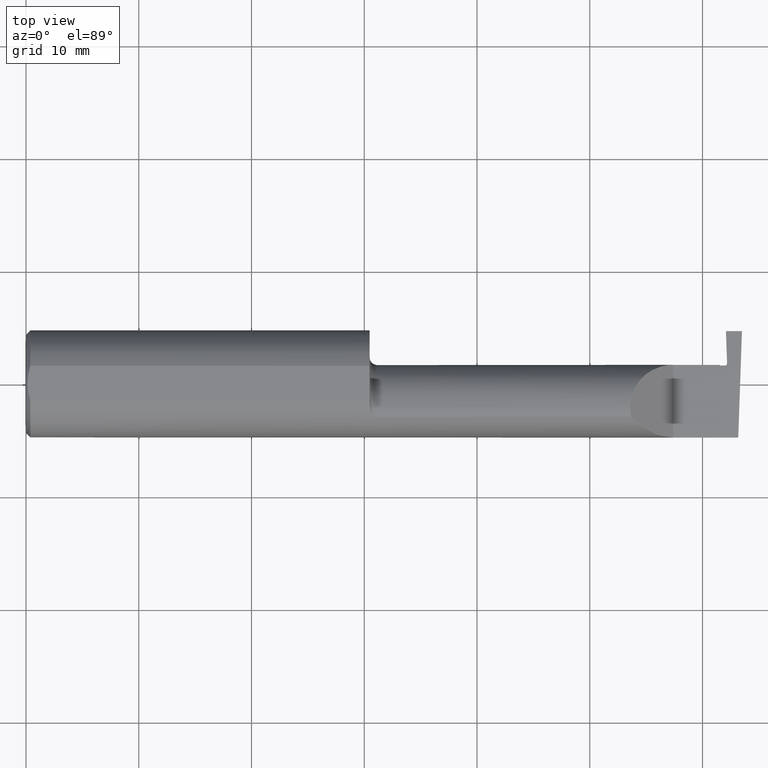
[diagram: clean part render]
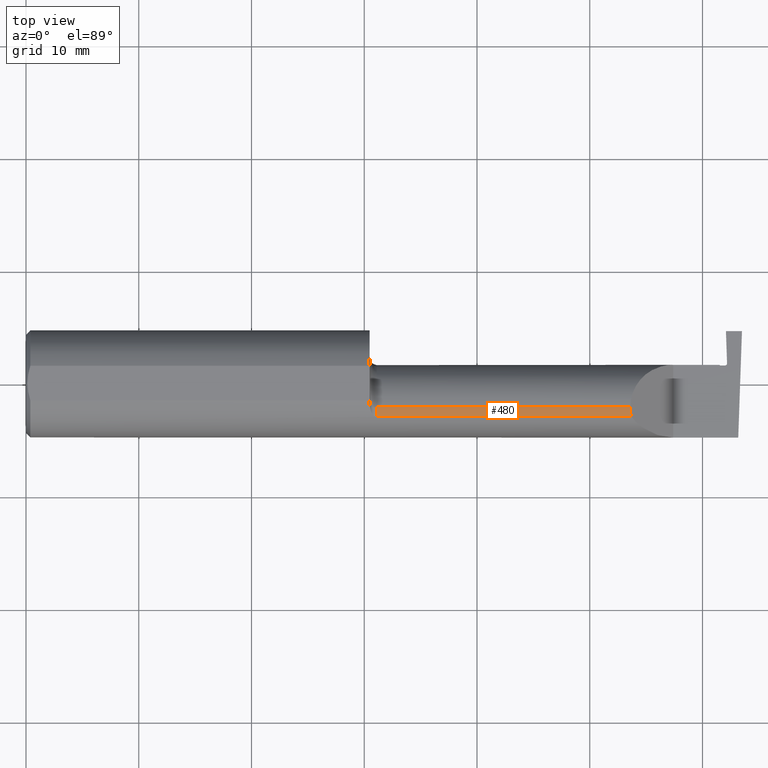
[diagram: same view with one face highlighted and labeled with its STEP entity id]
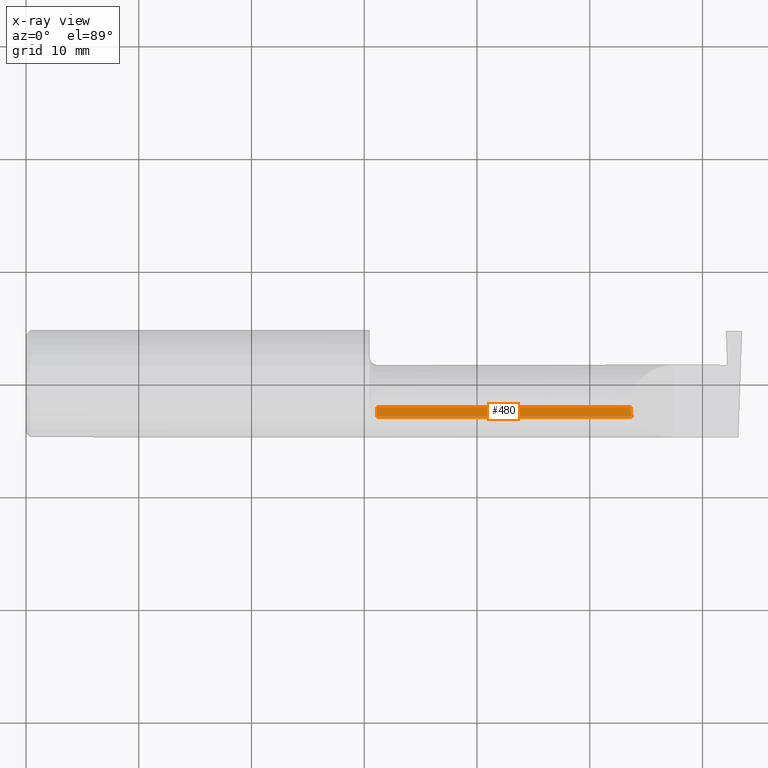
[diagram: x-ray of the same camera — body ghosted, the highlighted face saturated]
A machine part, top view. The second image highlights one B-rep face of the part: STEP entity #480.
The next image is the same camera in x-ray: the body ghosted, the highlighted face saturated — about 0% of this face is hidden behind the body in this view.
In plain terms, the highlighted cylindrical surface (partial cylindrical patch) has radius 3.81 mm, axis along (-1, -0, -0).
Its self-contained STEP definition (entity closure, byte-faithful):
#17 = CARTESIAN_POINT ( 'NONE',  ( 1.225000000000000089, -0.1172600179964007477, 0.1461167706989302817 ) ) ;
#21 = CARTESIAN_POINT ( 'NONE',  ( 1.225000000000000089, -0.08334999999999996578, 0.1499999999999999944 ) ) ;
#26 = ORIENTED_EDGE ( 'NONE', *, *, #105, .T. ) ;
#45 = CARTESIAN_POINT ( 'NONE',  ( 1.199999999999999956, -0.08334999999999996578, 0.000000000000000000 ) ) ;
#105 = EDGE_CURVE ( 'NONE', #113, #927, #911, .T. ) ;
#113 = VERTEX_POINT ( 'NONE', #17 ) ;
#115 = CARTESIAN_POINT ( 'NONE',  ( 1.199999999999999956, -0.08334999999999996578, 0.1499999999999999944 ) ) ;
#117 = CARTESIAN_POINT ( 'NONE',  ( 2.111300037307155986, -0.1061291577212409853, 0.1486999626928446061 ) ) ;
#130 = AXIS2_PLACEMENT_3D ( 'NONE', #45, #921, #202 ) ;
#135 = ORIENTED_EDGE ( 'NONE', *, *, #142, .F. ) ;
#140 = ORIENTED_EDGE ( 'NONE', *, *, #664, .T. ) ;
#142 = EDGE_CURVE ( 'NONE', #113, #186, #806, .T. ) ;
#186 = VERTEX_POINT ( 'NONE', #21 ) ;
#194 = CARTESIAN_POINT ( 'NONE',  ( 2.110000000000000320, -0.09477667630339421667, 0.1499999999999999944 ) ) ;
#202 = DIRECTION ( 'NONE',  ( 0.000000000000000000, 0.000000000000000000, 1.000000000000000000 ) ) ;
#211 = CARTESIAN_POINT ( 'NONE',  ( 2.113883229301070532, -0.1172600179964006784, 0.1461167706989303650 ) ) ;
#223 = EDGE_CURVE ( 'NONE', #927, #837, #268, .T. ) ;
#254 = CARTESIAN_POINT ( 'NONE',  ( 2.113883229301070532, -0.1172600179964006784, 0.1461167706989303650 ) ) ;
#268 =( BOUNDED_CURVE ( )  B_SPLINE_CURVE ( 3, ( #211, #117, #194, #1004 ),
 .UNSPECIFIED., .F., .T. ) 
 B_SPLINE_CURVE_WITH_KNOTS ( ( 4, 4 ),
 ( 6.055147272130141367, 6.283185307179586232 ),
 .UNSPECIFIED. ) 
 CURVE ( )  GEOMETRIC_REPRESENTATION_ITEM ( )  RATIONAL_B_SPLINE_CURVE ( ( 1.000000000000000000, 0.9956712472009929815, 0.9956712472009929815, 1.000000000000000000 ) ) 
 REPRESENTATION_ITEM ( '' )  );
#277 = ORIENTED_EDGE ( 'NONE', *, *, #223, .T. ) ;
#341 = CARTESIAN_POINT ( 'NONE',  ( 1.225000000000000089, -0.08334999999999996578, 0.000000000000000000 ) ) ;
#342 = VECTOR ( 'NONE', #570, 39.37007874015748143 ) ;
#361 = LINE ( 'NONE', #115, #632 ) ;
#480 = ADVANCED_FACE ( 'NONE', ( #999 ), #1012, .T. ) ;
#502 = CARTESIAN_POINT ( 'NONE',  ( 1.832000000000000073, -0.1172600179964007061, 0.1461167706989303094 ) ) ;
#531 = CARTESIAN_POINT ( 'NONE',  ( 2.110000000000000764, -0.08334999999999996578, 0.1499999999999999944 ) ) ;
#570 = DIRECTION ( 'NONE',  ( 1.000000000000000000, 0.000000000000000000, 0.000000000000000000 ) ) ;
#583 = DIRECTION ( 'NONE',  ( 0.000000000000000000, 0.000000000000000000, 1.000000000000000000 ) ) ;
#632 = VECTOR ( 'NONE', #989, 39.37007874015748143 ) ;
#664 = EDGE_CURVE ( 'NONE', #837, #186, #361, .T. ) ;
#739 = DIRECTION ( 'NONE',  ( -1.000000000000000000, -0.000000000000000000, -0.000000000000000000 ) ) ;
#806 = CIRCLE ( 'NONE', #925, 0.1499999999999999944 ) ;
#837 = VERTEX_POINT ( 'NONE', #531 ) ;
#911 = LINE ( 'NONE', #502, #342 ) ;
#921 = DIRECTION ( 'NONE',  ( -1.000000000000000000, -0.000000000000000000, -0.000000000000000000 ) ) ;
#925 = AXIS2_PLACEMENT_3D ( 'NONE', #341, #739, #583 ) ;
#927 = VERTEX_POINT ( 'NONE', #254 ) ;
#937 = EDGE_LOOP ( 'NONE', ( #277, #140, #135, #26 ) ) ;
#989 = DIRECTION ( 'NONE',  ( -1.000000000000000000, -0.000000000000000000, -0.000000000000000000 ) ) ;
#999 = FACE_OUTER_BOUND ( 'NONE', #937, .T. ) ;
#1004 = CARTESIAN_POINT ( 'NONE',  ( 2.110000000000000764, -0.08334999999999996578, 0.1499999999999999944 ) ) ;
#1012 = CYLINDRICAL_SURFACE ( 'NONE', #130, 0.1499999999999999944 ) ;